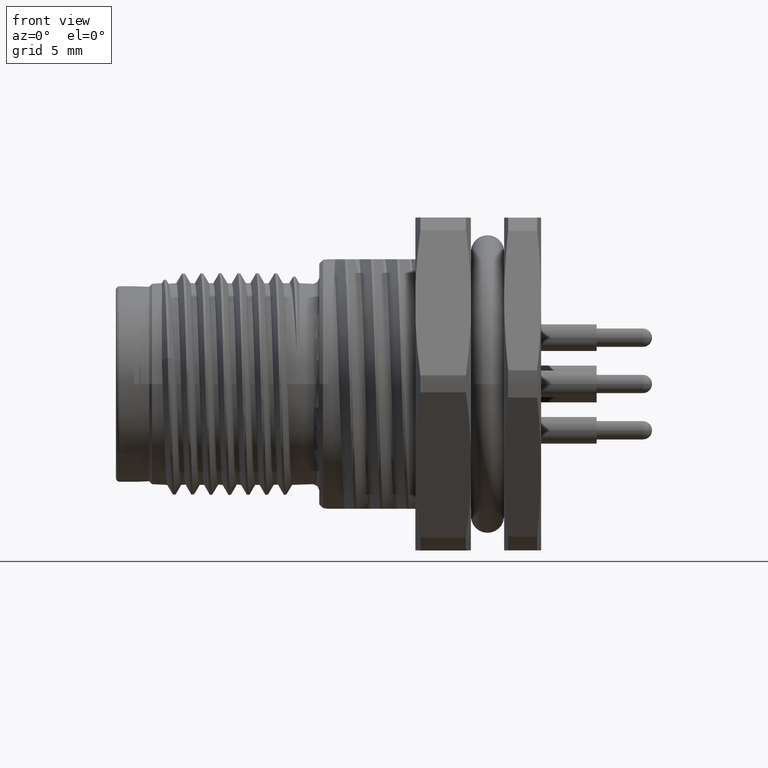
[diagram: clean part render]
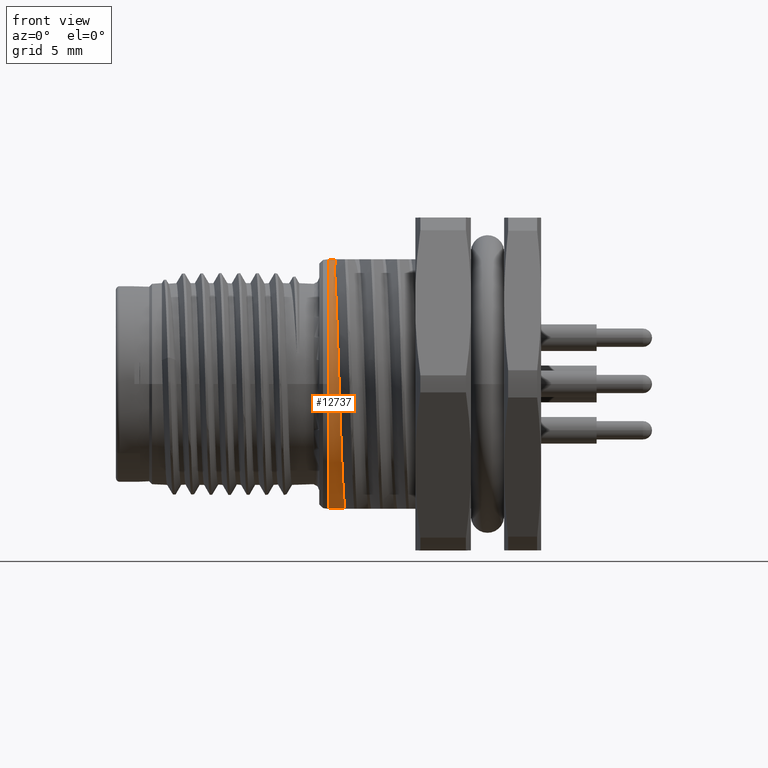
[diagram: same view with one face highlighted and labeled with its STEP entity id]
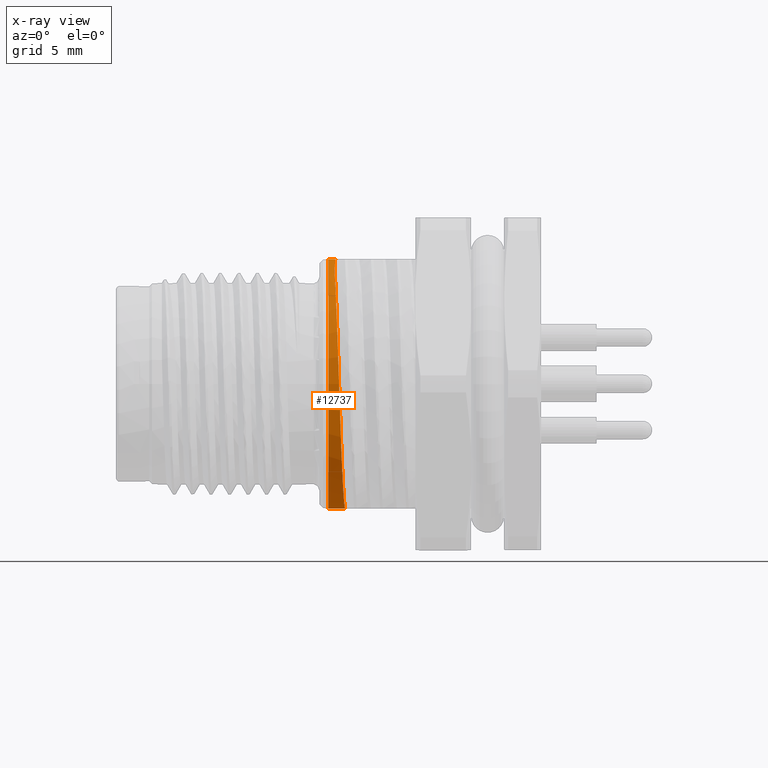
[diagram: x-ray of the same camera — body ghosted, the highlighted face saturated]
A machine part, front view. The second image highlights one B-rep face of the part: STEP entity #12737.
The next image is the same camera in x-ray: the body ghosted, the highlighted face saturated — about 0% of this face is hidden behind the body in this view.
In plain terms, the highlighted cylindrical surface (partial cylindrical patch) has radius 6.82 mm, axis along (1, 0, 0).
Its self-contained STEP definition (entity closure, byte-faithful):
#1548=DIRECTION('',(-9.999999959868E-1,-1.129171838854E-5,8.887615856173E-5));
#1549=VECTOR('',#1548,3.625594295806E-1);
#1550=CARTESIAN_POINT('',(1.026255942813E1,-9.746240402937E-1,
6.749967777111E0));
#1551=LINE('',#1550,#1549);
#2889=CARTESIAN_POINT('',(9.9E0,0.E0,0.E0));
#2890=DIRECTION('',(1.E0,0.E0,0.E0));
#2891=DIRECTION('',(0.E0,-1.429073510575E-1,9.897360703812E-1));
#2892=AXIS2_PLACEMENT_3D('',#2889,#2890,#2891);
#2894=CARTESIAN_POINT('',(9.9E0,0.E0,0.E0));
#2895=DIRECTION('',(1.E0,0.E0,0.E0));
#2896=DIRECTION('',(0.E0,-1.E0,0.E0));
#2897=AXIS2_PLACEMENT_3D('',#2894,#2895,#2896);
#2913=CARTESIAN_POINT('',(1.022758024529E1,-3.194089637462E0,6.025754730807E0));
#2914=CARTESIAN_POINT('',(1.023932109063E1,-3.504950210002E0,5.860975875300E0));
#2915=CARTESIAN_POINT('',(1.026214863852E1,-4.101157759494E0,5.483246821227E0));
#2916=CARTESIAN_POINT('',(1.029701126803E1,-4.897383029280E0,4.785482566238E0));
#2917=CARTESIAN_POINT('',(1.033170904178E1,-5.576532620587E0,3.973355870939E0));
#2918=CARTESIAN_POINT('',(1.036644244586E1,-6.122369172263E0,3.066239629480E0));
#2919=CARTESIAN_POINT('',(1.040119747562E1,-6.521859634623E0,2.085829414263E0));
#2920=CARTESIAN_POINT('',(1.043583045601E1,-6.765411662408E0,1.055540980784E0));
#2921=CARTESIAN_POINT('',(1.045923162633E1,-6.820048196862E0,
3.518548599362E-1));
#2922=CARTESIAN_POINT('',(1.047070093865E1,-6.820048196862E0,
3.624231655856E-7));
#2924=CARTESIAN_POINT('',(1.047070093865E1,-6.820048196862E0,
3.624231655856E-7));
#2925=CARTESIAN_POINT('',(1.048245308333E1,-6.820048196862E0,
-3.605308396955E-1));
#2926=CARTESIAN_POINT('',(1.050625335746E1,-6.762681200296E0,
-1.081586496338E0));
#2927=CARTESIAN_POINT('',(1.054181370155E1,-6.507024421437E0,
-2.136057663508E0));
#2928=CARTESIAN_POINT('',(1.057741325205E1,-6.087983678682E0,
-3.136949847254E0));
#2929=CARTESIAN_POINT('',(1.061300112340E1,-5.516159555162E0,
-4.059065350131E0));
#2930=CARTESIAN_POINT('',(1.064859370374E1,-4.805847476572E0,
-4.879328751111E0));
#2931=CARTESIAN_POINT('',(1.068418298274E1,-3.974915985391E0,
-5.577107843276E0));
#2932=CARTESIAN_POINT('',(1.071978270548E1,-3.044127312430E0,
-6.134920742839E0));
#2933=CARTESIAN_POINT('',(1.075535251801E1,-2.036995039615E0,
-6.538737662119E0));
#2934=CARTESIAN_POINT('',(1.077913371447E1,-1.331469760045E0,
-6.698408826715E0));
#2935=CARTESIAN_POINT('',(1.079103995788E1,-9.746212361358E-1,
-6.749933954279E0));
#2937=DIRECTION('',(-9.999999972230E-1,-7.741602873934E-6,-7.412206402089E-5));
#2938=VECTOR('',#2937,8.910399603529E-1);
#2939=CARTESIAN_POINT('',(1.079103995788E1,-9.746212361358E-1,
-6.749933954279E0));
#2940=LINE('',#2939,#2938);
#2966=CARTESIAN_POINT('',(1.022758024529E1,-3.194089637462E0,6.025754730807E0));
#2967=CARTESIAN_POINT('',(1.023167096823E1,-2.963920397357E0,6.147761274279E0));
#2968=CARTESIAN_POINT('',(1.023942776426E1,-2.489499936841E0,6.365467711625E0));
#2969=CARTESIAN_POINT('',(1.025129464129E1,-1.744803322540E0,6.608526527669E0));
#2970=CARTESIAN_POINT('',(1.025891801511E1,-1.232818204621E0,6.712687288719E0));
#2971=CARTESIAN_POINT('',(1.026255942813E1,-9.746240402937E-1,
6.749967777111E0));
#8829=VERTEX_POINT('',#2913);
#8830=VERTEX_POINT('',#2922);
#8831=VERTEX_POINT('',#2935);
#8832=CARTESIAN_POINT('',(9.9E0,-9.746281342133E-1,-6.75E0));
#8833=VERTEX_POINT('',#8832);
#8834=CARTESIAN_POINT('',(9.9E0,-6.82E0,0.E0));
#8835=VERTEX_POINT('',#8834);
#8836=CARTESIAN_POINT('',(9.9E0,-9.746281342124E-1,6.75E0));
#8837=VERTEX_POINT('',#8836);
#8838=CARTESIAN_POINT('',(1.026255942813E1,-9.746240402937E-1,
6.749967777111E0));
#8839=VERTEX_POINT('',#8838);
#12720=CARTESIAN_POINT('',(9.75E0,0.E0,0.E0));
#12721=DIRECTION('',(1.E0,0.E0,0.E0));
#12722=DIRECTION('',(0.E0,-1.E0,0.E0));
#12723=AXIS2_PLACEMENT_3D('',#12720,#12721,#12722);
#12724=CYLINDRICAL_SURFACE('',#12723,6.82E0);
#12726=ORIENTED_EDGE('',*,*,#12725,.T.);
#12728=ORIENTED_EDGE('',*,*,#12727,.T.);
#12729=ORIENTED_EDGE('',*,*,#10446,.T.);
#12730=ORIENTED_EDGE('',*,*,#12711,.F.);
#12731=ORIENTED_EDGE('',*,*,#12709,.F.);
#12732=ORIENTED_EDGE('',*,*,#10757,.F.);
#12734=ORIENTED_EDGE('',*,*,#12733,.F.);
#12735=EDGE_LOOP('',(#12726,#12728,#12729,#12730,#12731,#12732,#12734));
#12736=FACE_OUTER_BOUND('',#12735,.F.);
#12737=ADVANCED_FACE('',(#12736),#12724,.T.);
#2893=CIRCLE('',#2892,6.82E0);
#2898=CIRCLE('',#2897,6.82E0);
#2923=B_SPLINE_CURVE_WITH_KNOTS('',3,(#2913,#2914,#2915,#2916,#2917,#2918,#2919,
#2920,#2921,#2922),.UNSPECIFIED.,.F.,.F.,(4,1,1,1,1,1,1,4),(0.E0,
1.428571428571E-1,2.857142857143E-1,4.285714285714E-1,5.714285714286E-1,
7.142857142857E-1,8.571428571429E-1,1.E0),.UNSPECIFIED.);
#2936=B_SPLINE_CURVE_WITH_KNOTS('',3,(#2924,#2925,#2926,#2927,#2928,#2929,#2930,
#2931,#2932,#2933,#2934,#2935),.UNSPECIFIED.,.F.,.F.,(4,1,1,1,1,1,1,1,1,4),
(0.E0,1.111111111111E-1,2.222222222222E-1,3.333333333333E-1,4.444444444444E-1,
5.555555555556E-1,6.666666666667E-1,7.777777777778E-1,8.888888888889E-1,1.E0),
.UNSPECIFIED.);
#2972=B_SPLINE_CURVE_WITH_KNOTS('',3,(#2966,#2967,#2968,#2969,#2970,#2971),
.UNSPECIFIED.,.F.,.F.,(4,1,1,4),(0.E0,3.333333333333E-1,6.666666666667E-1,1.E0),
.UNSPECIFIED.);
#10446=EDGE_CURVE('',#8831,#8833,#2940,.T.);
#10757=EDGE_CURVE('',#8839,#8837,#1551,.T.);
#12709=EDGE_CURVE('',#8837,#8835,#2893,.T.);
#12711=EDGE_CURVE('',#8835,#8833,#2898,.T.);
#12725=EDGE_CURVE('',#8829,#8830,#2923,.T.);
#12727=EDGE_CURVE('',#8830,#8831,#2936,.T.);
#12733=EDGE_CURVE('',#8829,#8839,#2972,.T.);